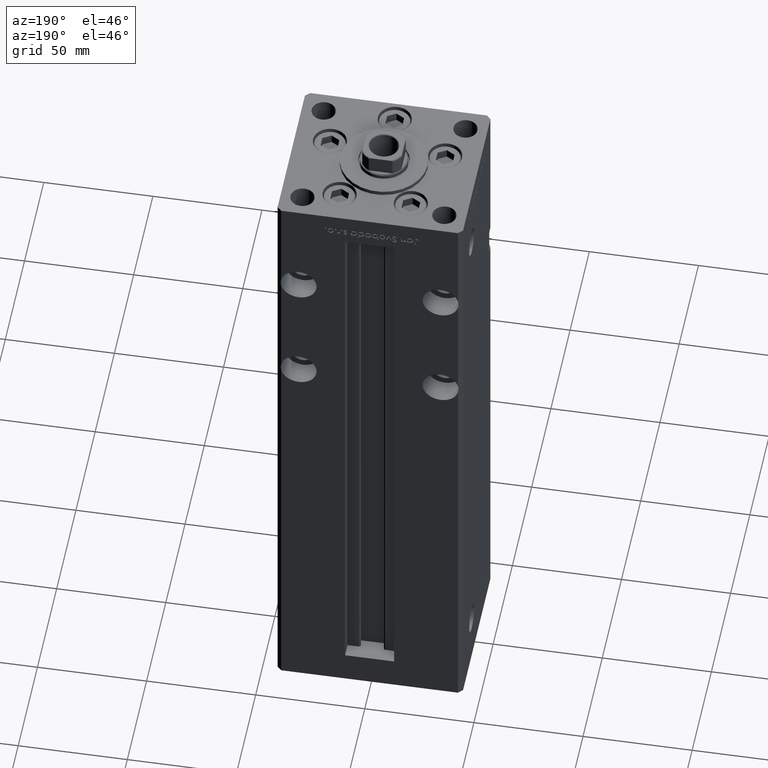
[diagram: clean part render]
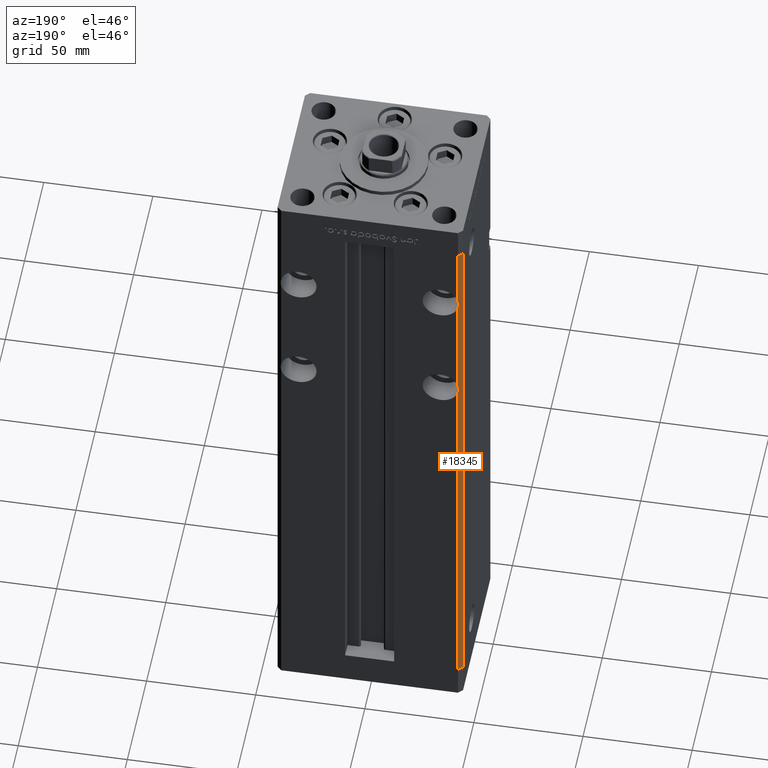
[diagram: same view with one face highlighted and labeled with its STEP entity id]
A machine part, auxiliary view. The second image highlights one B-rep face of the part: STEP entity #18345.
In plain terms, the highlighted planar face has unit normal (0.7071, -0.7071, 0).
Its self-contained STEP definition (entity closure, byte-faithful):
#3055 = CARTESIAN_POINT ( 'NONE',  ( -40.83505154639175316, 37.16494845360825394, 237.6857074889017269 ) ) ;
#5835 = LINE ( 'NONE', #49959, #27061 ) ;
#7343 = DIRECTION ( 'NONE',  ( -0.7071067811865500152, -0.7071067811865451302, 0.000000000000000000 ) ) ;
#8782 = CARTESIAN_POINT ( 'NONE',  ( -40.83505154639175316, 37.16494845360825394, 182.6857074889016985 ) ) ;
#9104 = ORIENTED_EDGE ( 'NONE', *, *, #13370, .T. ) ;
#9167 = CARTESIAN_POINT ( 'NONE',  ( -40.50000000000000711, 37.50000000000000000, 179.9844355629253982 ) ) ;
#9345 = DIRECTION ( 'NONE',  ( -0.7071067811865500152, -0.7071067811865451302, 0.000000000000000000 ) ) ;
#9581 = DIRECTION ( 'NONE',  ( 0.7071067811865500152, 0.7071067811865451302, 0.000000000000000000 ) ) ;
#9641 = LINE ( 'NONE', #34385, #12745 ) ;
#10171 = LINE ( 'NONE', #30898, #38522 ) ;
#10474 = CARTESIAN_POINT ( 'NONE',  ( -40.50000000000000711, 37.50000000000000000, 268.5000000000000000 ) ) ;
#11101 = CARTESIAN_POINT ( 'NONE',  ( -40.50000000000000711, 37.50000000000000000, 0.000000000000000000 ) ) ;
#11801 = VERTEX_POINT ( 'NONE', #38740 ) ;
#11824 = ORIENTED_EDGE ( 'NONE', *, *, #35457, .F. ) ;
#11907 = EDGE_LOOP ( 'NONE', ( #16936, #14884, #45232, #40810, #9104, #31595, #21226, #11824 ) ) ;
#12028 = EDGE_CURVE ( 'NONE', #17726, #36791, #9641, .T. ) ;
#12289 = CARTESIAN_POINT ( 'NONE',  ( -40.50000000000000711, 37.50000000000000000, 184.0155644370746586 ) ) ;
#12745 = VECTOR ( 'NONE', #13944, 1000.000000000000000 ) ;
#13035 = CARTESIAN_POINT ( 'NONE',  ( -40.50000000000000711, 37.50000000000000000, 268.5000000000000000 ) ) ;
#13370 = EDGE_CURVE ( 'NONE', #39767, #40689, #23131, .T. ) ;
#13944 = DIRECTION ( 'NONE',  ( -0.000000000000000000, -0.000000000000000000, -1.000000000000000000 ) ) ;
#14329 = CARTESIAN_POINT ( 'NONE',  ( -40.50000000000000711, 37.50000000000000000, 0.000000000000000000 ) ) ;
#14884 = ORIENTED_EDGE ( 'NONE', *, *, #37716, .T. ) ;
#15043 = VERTEX_POINT ( 'NONE', #49038 ) ;
#16936 = ORIENTED_EDGE ( 'NONE', *, *, #19452, .T. ) ;
#17726 = VERTEX_POINT ( 'NONE', #47517 ) ;
#18345 = ADVANCED_FACE ( 'NONE', ( #41330 ), #24675, .F. ) ;
#18588 =( BOUNDED_CURVE ( )  B_SPLINE_CURVE ( 3, ( #12289, #8782, #24416, #40799 ),
 .UNSPECIFIED., .F., .F. ) 
 B_SPLINE_CURVE_WITH_KNOTS ( ( 4, 4 ),
 ( 2.894783720120222004, 3.388401587059364228 ),
 .UNSPECIFIED. ) 
 CURVE ( )  GEOMETRIC_REPRESENTATION_ITEM ( )  RATIONAL_B_SPLINE_CURVE ( ( 1.000000000000000000, 0.9797979797979801120, 0.9797979797979801120, 1.000000000000000000 ) ) 
 REPRESENTATION_ITEM ( '' )  );
#19452 = EDGE_CURVE ( 'NONE', #15043, #36666, #49096, .T. ) ;
#21226 = ORIENTED_EDGE ( 'NONE', *, *, #45908, .F. ) ;
#23131 = LINE ( 'NONE', #10474, #35979 ) ;
#23151 = EDGE_CURVE ( 'NONE', #40689, #11801, #53040, .T. ) ;
#24416 = CARTESIAN_POINT ( 'NONE',  ( -40.83505154639175316, 37.16494845360825394, 181.3142925110983867 ) ) ;
#24675 = PLANE ( 'NONE',  #44735 ) ;
#26516 = DIRECTION ( 'NONE',  ( 0.7071067811865451302, -0.7071067811865500152, 0.000000000000000000 ) ) ;
#26586 = DIRECTION ( 'NONE',  ( -0.000000000000000000, -0.000000000000000000, -1.000000000000000000 ) ) ;
#27061 = VECTOR ( 'NONE', #9345, 1000.000000000000114 ) ;
#27790 = CARTESIAN_POINT ( 'NONE',  ( -40.50000000000000711, 37.50000000000000000, 239.0155644370746302 ) ) ;
#27968 = CARTESIAN_POINT ( 'NONE',  ( -40.50000000000000711, 37.50000000000000000, 184.0155644370746586 ) ) ;
#29423 = VECTOR ( 'NONE', #7343, 1000.000000000000114 ) ;
#30727 = CARTESIAN_POINT ( 'NONE',  ( -42.50000000000001421, 35.50000000000000711, 268.5000000000000000 ) ) ;
#30867 = EDGE_CURVE ( 'NONE', #36791, #39767, #18588, .T. ) ;
#30898 = CARTESIAN_POINT ( 'NONE',  ( -42.50000000000001421, 35.50000000000000711, 268.5000000000000000 ) ) ;
#31595 = ORIENTED_EDGE ( 'NONE', *, *, #23151, .T. ) ;
#34385 = CARTESIAN_POINT ( 'NONE',  ( -40.50000000000000711, 37.50000000000000000, 268.5000000000000000 ) ) ;
#34691 = DIRECTION ( 'NONE',  ( -0.000000000000000000, -0.000000000000000000, -1.000000000000000000 ) ) ;
#35079 =( BOUNDED_CURVE ( )  B_SPLINE_CURVE ( 3, ( #27790, #3055, #45692, #40142 ),
 .UNSPECIFIED., .F., .F. ) 
 B_SPLINE_CURVE_WITH_KNOTS ( ( 4, 4 ),
 ( 2.894783720120222004, 3.388401587059364228 ),
 .UNSPECIFIED. ) 
 CURVE ( )  GEOMETRIC_REPRESENTATION_ITEM ( )  RATIONAL_B_SPLINE_CURVE ( ( 1.000000000000000000, 0.9797979797979801120, 0.9797979797979801120, 1.000000000000000000 ) ) 
 REPRESENTATION_ITEM ( '' )  );
#35457 = EDGE_CURVE ( 'NONE', #15043, #51899, #5835, .T. ) ;
#35979 = VECTOR ( 'NONE', #34691, 1000.000000000000000 ) ;
#36666 = VERTEX_POINT ( 'NONE', #37946 ) ;
#36791 = VERTEX_POINT ( 'NONE', #27968 ) ;
#37716 = EDGE_CURVE ( 'NONE', #36666, #17726, #35079, .T. ) ;
#37946 = CARTESIAN_POINT ( 'NONE',  ( -40.50000000000000711, 37.50000000000000000, 239.0155644370746302 ) ) ;
#38522 = VECTOR ( 'NONE', #26586, 1000.000000000000000 ) ;
#38740 = CARTESIAN_POINT ( 'NONE',  ( -42.50000000000001421, 35.50000000000000711, 0.000000000000000000 ) ) ;
#39767 = VERTEX_POINT ( 'NONE', #9167 ) ;
#40142 = CARTESIAN_POINT ( 'NONE',  ( -40.50000000000000711, 37.50000000000000000, 234.9844355629253982 ) ) ;
#40689 = VERTEX_POINT ( 'NONE', #14329 ) ;
#40799 = CARTESIAN_POINT ( 'NONE',  ( -40.50000000000000711, 37.50000000000000000, 179.9844355629253982 ) ) ;
#40810 = ORIENTED_EDGE ( 'NONE', *, *, #30867, .T. ) ;
#41330 = FACE_OUTER_BOUND ( 'NONE', #11907, .T. ) ;
#42376 = CARTESIAN_POINT ( 'NONE',  ( -40.50000000000000711, 37.50000000000000000, 268.5000000000000000 ) ) ;
#44735 = AXIS2_PLACEMENT_3D ( 'NONE', #42376, #26516, #9581 ) ;
#45050 = DIRECTION ( 'NONE',  ( -0.000000000000000000, -0.000000000000000000, -1.000000000000000000 ) ) ;
#45232 = ORIENTED_EDGE ( 'NONE', *, *, #12028, .T. ) ;
#45692 = CARTESIAN_POINT ( 'NONE',  ( -40.83505154639175316, 37.16494845360825394, 236.3142925110983583 ) ) ;
#45908 = EDGE_CURVE ( 'NONE', #51899, #11801, #10171, .T. ) ;
#47517 = CARTESIAN_POINT ( 'NONE',  ( -40.50000000000000711, 37.50000000000000000, 234.9844355629253982 ) ) ;
#49038 = CARTESIAN_POINT ( 'NONE',  ( -40.50000000000000711, 37.50000000000000000, 268.5000000000000000 ) ) ;
#49096 = LINE ( 'NONE', #13035, #52495 ) ;
#49959 = CARTESIAN_POINT ( 'NONE',  ( -40.50000000000000711, 37.50000000000000000, 268.5000000000000000 ) ) ;
#51899 = VERTEX_POINT ( 'NONE', #30727 ) ;
#52495 = VECTOR ( 'NONE', #45050, 1000.000000000000000 ) ;
#53040 = LINE ( 'NONE', #11101, #29423 ) ;